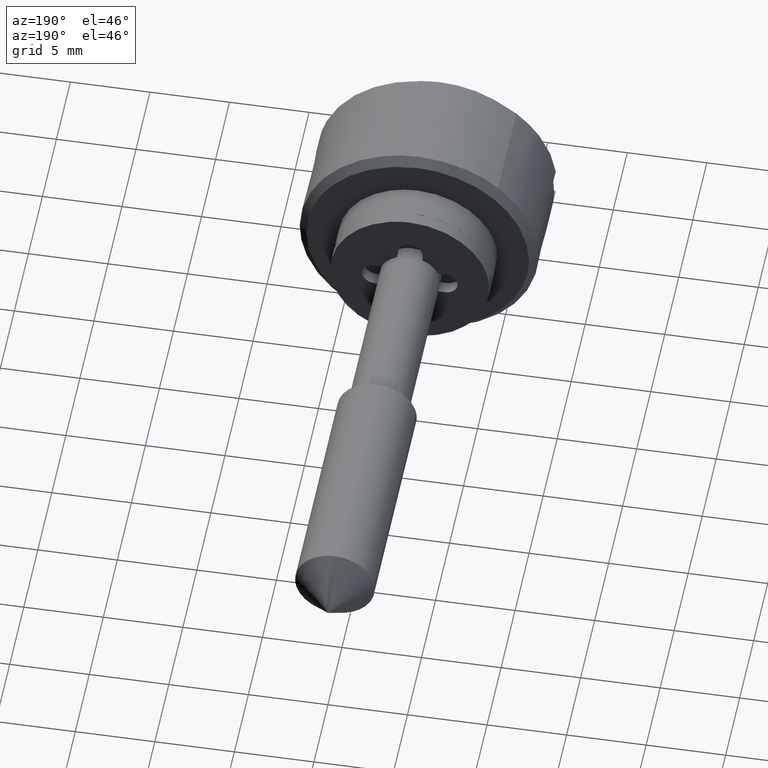
[diagram: clean part render]
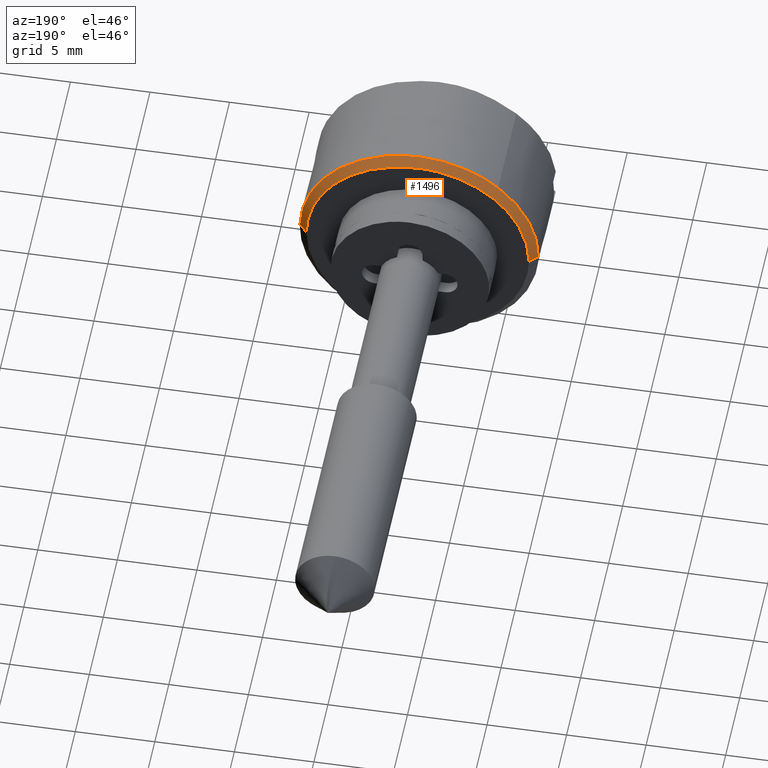
[diagram: same view with one face highlighted and labeled with its STEP entity id]
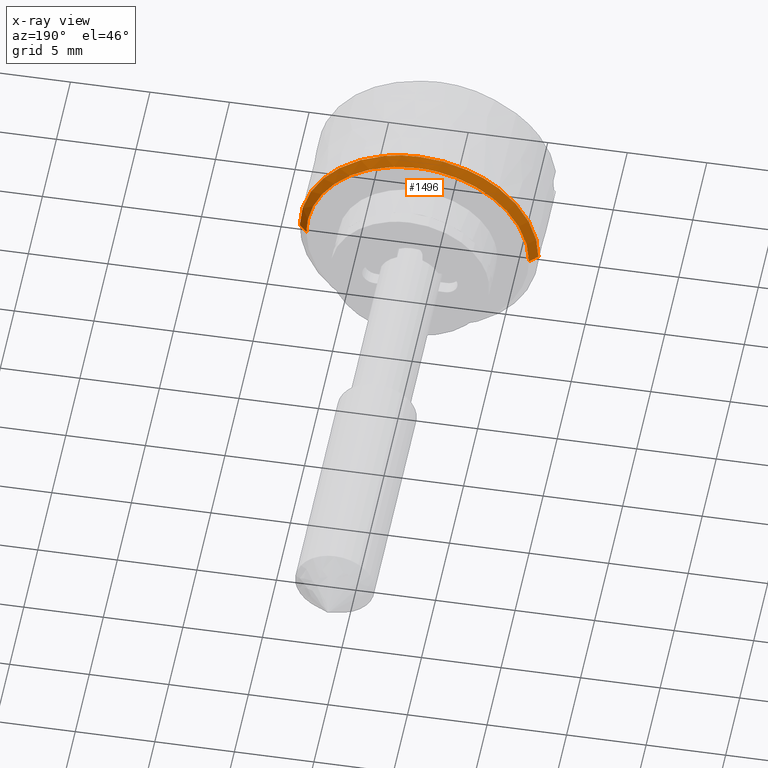
[diagram: x-ray of the same camera — body ghosted, the highlighted face saturated]
A machine part, auxiliary view. The second image highlights one B-rep face of the part: STEP entity #1496.
The next image is the same camera in x-ray: the body ghosted, the highlighted face saturated — about 0% of this face is hidden behind the body in this view.
In plain terms, the highlighted face is a freeform B-spline surface patch.
Its self-contained STEP definition (entity closure, byte-faithful):
#1383=CARTESIAN_POINT('',(-1.987500000000001,-6.987233937410895,0.060976666794888));
#1384=CARTESIAN_POINT('',(-1.987500000000001,-6.926257270616007,7.048210604205784));
#1385=CARTESIAN_POINT('',(-1.987500000000001,0.060976666794888,6.987233937410895));
#1386=CARTESIAN_POINT('',(-1.987500000000001,7.048210604205784,6.926257270616007));
#1387=CARTESIAN_POINT('',(-1.987500000000001,6.987233937410895,-0.060976666794888));
#1388=CARTESIAN_POINT('',(-2.512812499999944,-7.512526435120544,0.065560824973877));
#1389=CARTESIAN_POINT('',(-2.512812499999944,-7.446965610146667,7.578087260094423));
#1390=CARTESIAN_POINT('',(-2.512812499999944,0.065560824973877,7.512526435120544));
#1391=CARTESIAN_POINT('',(-2.512812499999944,7.578087260094423,7.446965610146667));
#1392=CARTESIAN_POINT('',(-2.512812499999944,7.512526435120544,-0.065560824973877));
#1400=(BOUNDED_SURFACE()B_SPLINE_SURFACE(2,1,((#1383,#1388),(#1384,#1389),(#1385,#1390),(#1386,#1391),(#1387,#1392)),.UNSPECIFIED.,.F.,.F.,.U.)B_SPLINE_SURFACE_WITH_KNOTS((3,2,3),(2,2),(0.0,12.447635316264471,24.895270632528948),(0.0,1.0),.UNSPECIFIED.)GEOMETRIC_REPRESENTATION_ITEM()RATIONAL_B_SPLINE_SURFACE(((1.0,1.0),(0.707106781186548,0.707106781186548),(1.0,1.0),(0.707106781186548,0.707106781186548),(1.0,1.0)))REPRESENTATION_ITEM('')SURFACE());
#1401=CARTESIAN_POINT('',(-2.500000000000328,-7.499714422981644,0.065449016240610));
#1402=VERTEX_POINT('',#1401);
#1403=CARTESIAN_POINT('',(-2.499999999999945,0.0,7.500000000000000));
#1404=VERTEX_POINT('',#1403);
#1405=CARTESIAN_POINT('',(-2.500000000000329,-7.499714422981644,0.065449016240610));
#1406=CARTESIAN_POINT('',(-2.499999999999945,-7.434834079456779,7.500000000000000));
#1407=CARTESIAN_POINT('',(-2.499999999999945,0.0,7.500000000000000));
#1415=(BOUNDED_CURVE()B_SPLINE_CURVE(2,(#1405,#1406,#1407),.UNSPECIFIED.,.F.,.U.)B_SPLINE_CURVE_WITH_KNOTS((3,3),(0.251539894335119,0.500000000000000),.UNSPECIFIED.)CURVE()GEOMETRIC_REPRESENTATION_ITEM()RATIONAL_B_SPLINE_CURVE((0.996414028100101,0.708910879620330,1.0))REPRESENTATION_ITEM(''));
#1416=EDGE_CURVE('',#1402,#1404,#1415,.T.);
#1417=ORIENTED_EDGE('',*,*,#1416,.F.);
#1418=CARTESIAN_POINT('',(-2.000000000000318,-6.999733461449496,0.061085748490961));
#1419=VERTEX_POINT('',#1418);
#1420=CARTESIAN_POINT('',(-2.000000000000318,-6.999733461449496,0.061085748490961));
#1421=CARTESIAN_POINT('',(-2.500000000000328,-7.499714422981644,0.065449016240610));
#1422=QUASI_UNIFORM_CURVE('',1,(#1420,#1421),.UNSPECIFIED.,.F.,.U.);
#1423=EDGE_CURVE('',#1419,#1402,#1422,.T.);
#1424=ORIENTED_EDGE('',*,*,#1423,.F.);
#1425=CARTESIAN_POINT('',(-2.0,0.0,7.0));
#1426=VERTEX_POINT('',#1425);
#1427=CARTESIAN_POINT('',(-2.0,0.0,7.0));
#1428=CARTESIAN_POINT('',(-1.999999999999999,-6.939178474160245,7.0));
#1429=CARTESIAN_POINT('',(-2.000000000000318,-6.999733461449496,0.061085748490961));
#1437=(BOUNDED_CURVE()B_SPLINE_CURVE(2,(#1427,#1428,#1429),.UNSPECIFIED.,.F.,.U.)B_SPLINE_CURVE_WITH_KNOTS((3,3),(0.500000000000000,0.748460105664896),.UNSPECIFIED.)CURVE()GEOMETRIC_REPRESENTATION_ITEM()RATIONAL_B_SPLINE_CURVE((1.0,0.708910879620312,0.996414028100135))REPRESENTATION_ITEM(''));
#1438=EDGE_CURVE('',#1426,#1419,#1437,.T.);
#1439=ORIENTED_EDGE('',*,*,#1438,.F.);
#1440=CARTESIAN_POINT('',(-2.000000000000318,6.999733461449496,-0.061085748490961));
#1441=VERTEX_POINT('',#1440);
#1442=CARTESIAN_POINT('',(-2.000000000000318,6.999733461449496,-0.061085748490961));
#1443=CARTESIAN_POINT('',(-2.000000000000000,7.0,-0.030543455747252));
#1444=CARTESIAN_POINT('',(-2.0,7.0,0.0));
#1445=CARTESIAN_POINT('',(-2.0,6.999999999999999,6.999999999999999));
#1446=CARTESIAN_POINT('',(-2.0,0.0,7.0));
#1454=(BOUNDED_CURVE()B_SPLINE_CURVE(2,(#1442,#1443,#1444,#1445,#1446),.UNSPECIFIED.,.F.,.U.)B_SPLINE_CURVE_WITH_KNOTS((3,2,3),(0.248460105664895,0.250000000000000,0.500000000000000),.UNSPECIFIED.)CURVE()GEOMETRIC_REPRESENTATION_ITEM()RATIONAL_B_SPLINE_CURVE((0.996414028100133,0.998195901566234,1.0,0.707106781186547,1.0))REPRESENTATION_ITEM(''));
#1455=EDGE_CURVE('',#1441,#1426,#1454,.T.);
#1456=ORIENTED_EDGE('',*,*,#1455,.F.);
#1457=CARTESIAN_POINT('',(-2.500000000000329,7.499714422981644,-0.065449016240611));
#1458=VERTEX_POINT('',#1457);
#1459=CARTESIAN_POINT('',(-2.000000000000318,6.999733461449496,-0.061085748490961));
#1460=CARTESIAN_POINT('',(-2.500000000000329,7.499714422981644,-0.065449016240611));
#1461=QUASI_UNIFORM_CURVE('',1,(#1459,#1460),.UNSPECIFIED.,.F.,.U.);
#1462=EDGE_CURVE('',#1441,#1458,#1461,.T.);
#1463=ORIENTED_EDGE('',*,*,#1462,.T.);
#1464=CARTESIAN_POINT('',(-2.499999999999945,4.969649450100505,5.617168712359836));
#1465=VERTEX_POINT('',#1464);
#1466=CARTESIAN_POINT('',(-2.499999999999946,4.969649450100505,5.617168712359836));
#1467=CARTESIAN_POINT('',(-2.499999999999945,7.500000000000000,3.378504384688980));
#1468=CARTESIAN_POINT('',(-2.499999999999945,7.500000000000000,0.0));
#1469=CARTESIAN_POINT('',(-2.499999999999945,7.500000000000000,-0.032725131158087));
#1470=CARTESIAN_POINT('',(-2.500000000000328,7.499714422981644,-0.065449016240611));
#1478=(BOUNDED_CURVE()B_SPLINE_CURVE(2,(#1466,#1467,#1468,#1469,#1470),.UNSPECIFIED.,.F.,.U.)B_SPLINE_CURVE_WITH_KNOTS((3,2,3),(0.615779863551538,0.750000000000000,0.751539894335120),.UNSPECIFIED.)CURVE()GEOMETRIC_REPRESENTATION_ITEM()RATIONAL_B_SPLINE_CURVE((0.854350162460765,0.842751328824116,1.0,0.998195901566217,0.996414028100099))REPRESENTATION_ITEM(''));
#1479=EDGE_CURVE('',#1465,#1458,#1478,.T.);
#1480=ORIENTED_EDGE('',*,*,#1479,.F.);
#1481=CARTESIAN_POINT('',(-2.499999999999945,0.0,7.500000000000000));
#1482=CARTESIAN_POINT('',(-2.499999999999945,2.841495119341850,7.500000000000001));
#1483=CARTESIAN_POINT('',(-2.499999999999946,4.969649450100505,5.617168712359836));
#1491=(BOUNDED_CURVE()B_SPLINE_CURVE(2,(#1481,#1482,#1483),.UNSPECIFIED.,.F.,.U.)B_SPLINE_CURVE_WITH_KNOTS((3,3),(0.500000000000000,0.615779863551538),.UNSPECIFIED.)CURVE()GEOMETRIC_REPRESENTATION_ITEM()RATIONAL_B_SPLINE_CURVE((1.0,0.864355452362431,0.854350162460765))REPRESENTATION_ITEM(''));
#1492=EDGE_CURVE('',#1404,#1465,#1491,.T.);
#1493=ORIENTED_EDGE('',*,*,#1492,.F.);
#1494=EDGE_LOOP('',(#1417,#1424,#1439,#1456,#1463,#1480,#1493));
#1495=FACE_OUTER_BOUND('',#1494,.T.);
#1496=ADVANCED_FACE('',(#1495),#1400,.T.);